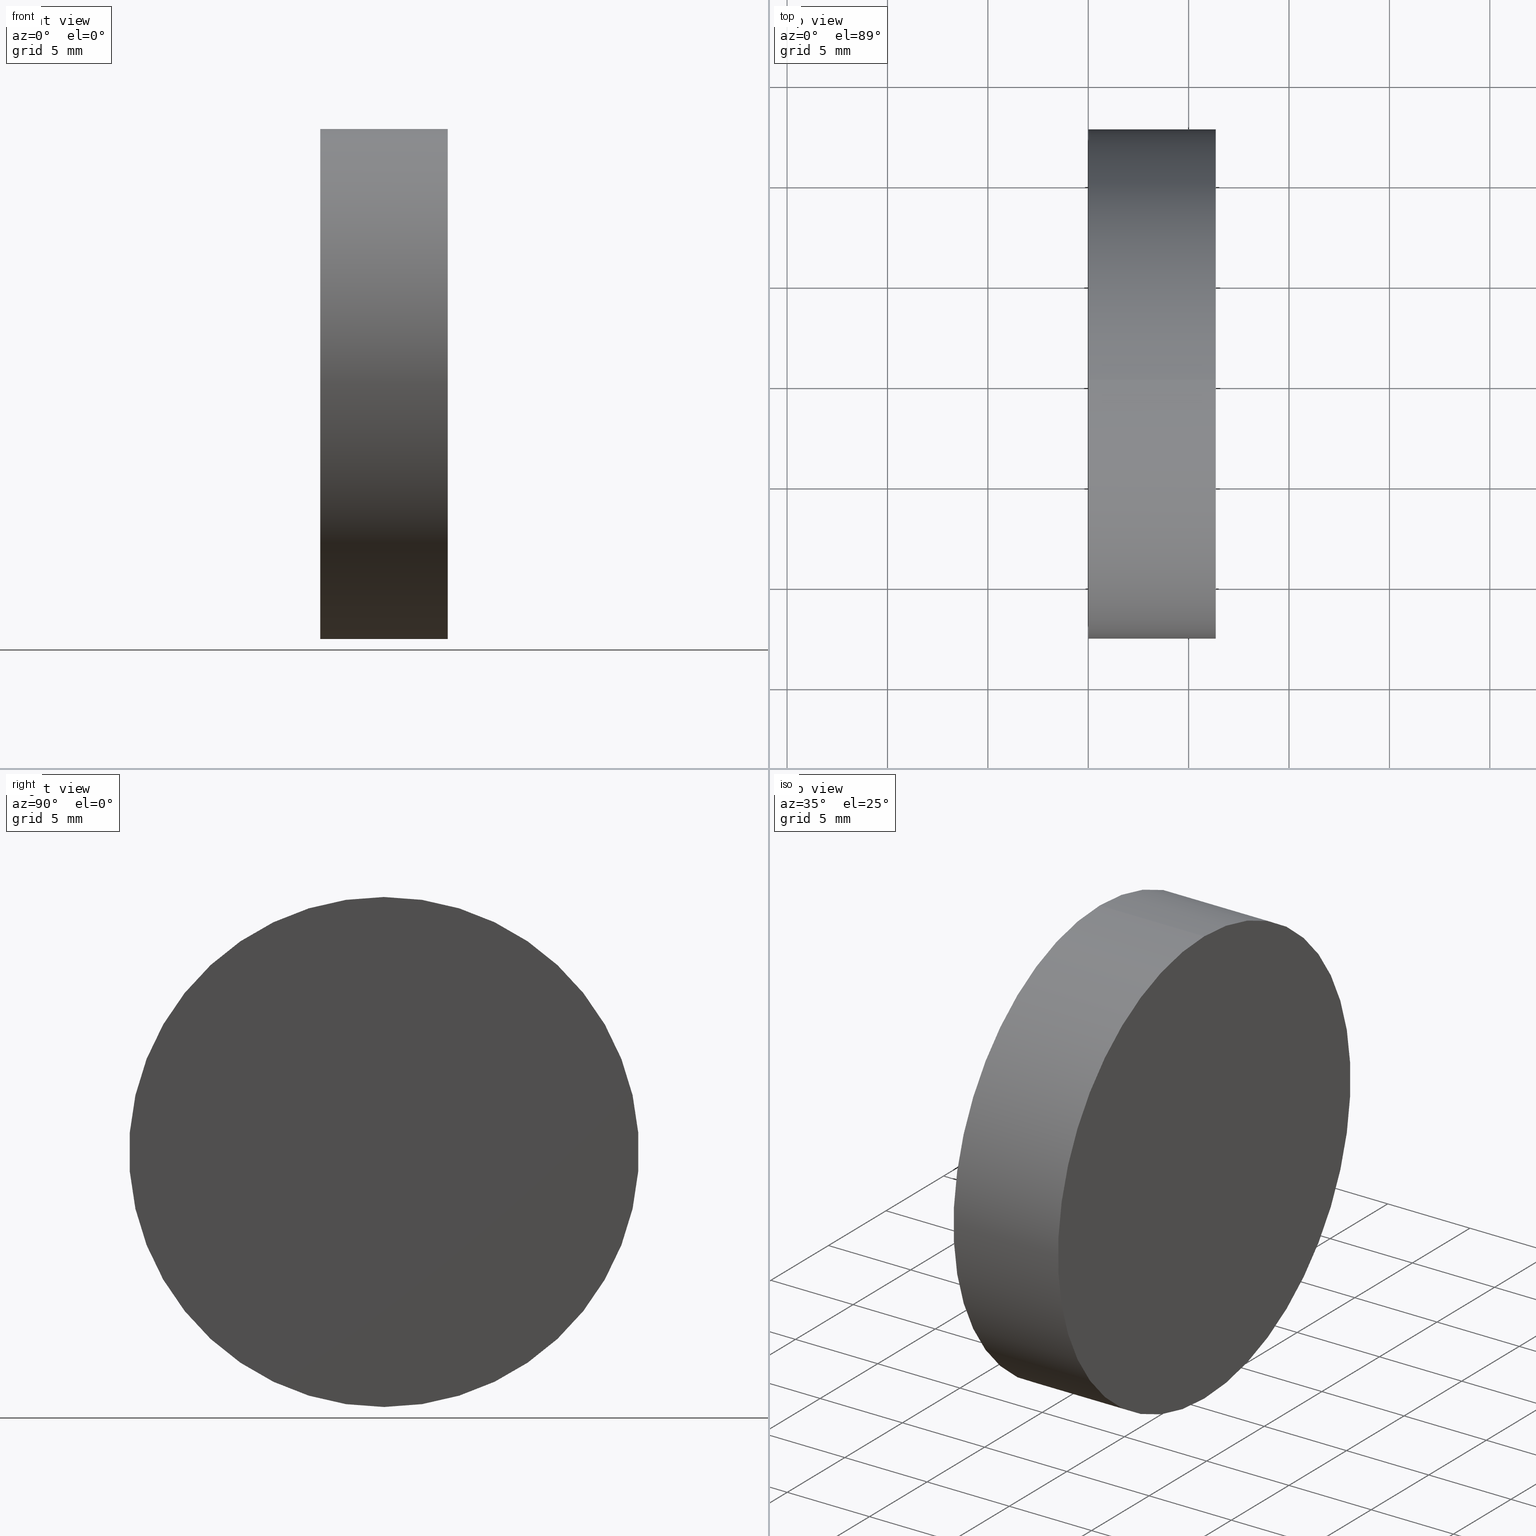
[diagram: canonical four-view strip — front | top / right | iso, engineering-drawing reading convention]
A machine part, canonical four-view strip (front | top / right | iso — engineering-drawing reading convention). The complete STEP part file that produces these views, byte-faithful:
ISO-10303-21;
HEADER;
FILE_DESCRIPTION (( 'STEP AP214' ),
    '1' );
FILE_NAME ('433000.STEP',
    '2019-08-28T01:20:02',
    ( 'user' ),
    ( '΢���й�' ),
    'SwSTEP 2.0',
    'SolidWorks 2016',
    '' );
FILE_SCHEMA (( 'AUTOMOTIVE_DESIGN' ));
ENDSEC;

DATA;
#1 = PRODUCT_CONTEXT ( 'NONE', #131, 'mechanical' ) ;
#2 = APPLICATION_PROTOCOL_DEFINITION ( 'draft international standard', 'automotive_design', 1998, #131 ) ;
#3 = DIRECTION ( 'NONE',  ( 0.0000000000000000000, 0.0000000000000000000, 1.000000000000000000 ) ) ;
#4 = DIRECTION ( 'NONE',  ( -0.0000000000000000000, 0.0000000000000000000, 1.000000000000000000 ) ) ;
#5 = SURFACE_STYLE_USAGE ( .BOTH. , #84 ) ;
#6 = VERTEX_POINT ( 'NONE', #117 ) ;
#7 = DIRECTION ( 'NONE',  ( 0.0000000000000000000, 0.0000000000000000000, 1.000000000000000000 ) ) ;
#8 = LINE ( 'NONE', #132, #63 ) ;
#9 = AXIS2_PLACEMENT_3D ( 'NONE', #113, #83, #4 ) ;
#10 = MECHANICAL_DESIGN_GEOMETRIC_PRESENTATION_REPRESENTATION (  '', ( #79 ), #38 ) ;
#11 = ADVANCED_FACE ( 'NONE', ( #56 ), #51, .T. ) ;
#12 = EDGE_CURVE ( 'NONE', #128, #6, #124, .T. ) ;
#13 = LINE ( 'NONE', #123, #118 ) ;
#14 = AXIS2_PLACEMENT_3D ( 'NONE', #115, #53, #73 ) ;
#15 = EDGE_LOOP ( 'NONE', ( #98, #65 ) ) ;
#16 = DIRECTION ( 'NONE',  ( 0.0000000000000000000, 0.0000000000000000000, 1.000000000000000000 ) ) ;
#17 = AXIS2_PLACEMENT_3D ( 'NONE', #19, #82, #3 ) ;
#18 =( NAMED_UNIT ( * ) SI_UNIT ( $, .STERADIAN. ) SOLID_ANGLE_UNIT ( ) );
#19 = CARTESIAN_POINT ( 'NONE',  ( 1.734723475976807100E-015, 0.0000000000000000000, 0.0000000000000000000 ) ) ;
#20 = DIRECTION ( 'NONE',  ( 0.0000000000000000000, 0.0000000000000000000, 1.000000000000000000 ) ) ;
#21 = PLANE ( 'NONE',  #9 ) ;
#22 = CARTESIAN_POINT ( 'NONE',  ( 1.734723475976807100E-015, 0.0000000000000000000, 0.0000000000000000000 ) ) ;
#23 = PRESENTATION_LAYER_ASSIGNMENT (  '', '', ( #93 ) ) ;
#24 = ORIENTED_EDGE ( 'NONE', *, *, #122, .F. ) ;
#25 = UNCERTAINTY_MEASURE_WITH_UNIT (LENGTH_MEASURE( 1.000000000000000100E-005 ), #28, 'distance_accuracy_value', 'NONE');
#26 = PRODUCT ( '433000', '433000', '', ( #1 ) ) ;
#27 = PRESENTATION_STYLE_ASSIGNMENT (( #5 ) ) ;
#28 =( LENGTH_UNIT ( ) NAMED_UNIT ( * ) SI_UNIT ( .MILLI., .METRE. ) );
#29 = CARTESIAN_POINT ( 'NONE',  ( 1.734723475976807100E-015, 0.0000000000000000000, 12.69999999999999900 ) ) ;
#30 = AXIS2_PLACEMENT_3D ( 'NONE', #46, #72, #134 ) ;
#31 = CARTESIAN_POINT ( 'NONE',  ( 6.349999999999997000, 0.0000000000000000000, 0.0000000000000000000 ) ) ;
#32 = FILL_AREA_STYLE_COLOUR ( '', #129 ) ;
#33 = ORIENTED_EDGE ( 'NONE', *, *, #127, .F. ) ;
#34 = AXIS2_PLACEMENT_3D ( 'NONE', #125, #50, #61 ) ;
#35 = AXIS2_PLACEMENT_3D ( 'NONE', #31, #92, #20 ) ;
#36 = PRODUCT_DEFINITION_FORMATION_WITH_SPECIFIED_SOURCE ( '�κ�', '', #26, .NOT_KNOWN. ) ;
#37 = CLOSED_SHELL ( 'NONE', ( #11, #106, #64, #54 ) ) ;
#38 =( GEOMETRIC_REPRESENTATION_CONTEXT ( 3 ) GLOBAL_UNCERTAINTY_ASSIGNED_CONTEXT ( ( #110 ) ) GLOBAL_UNIT_ASSIGNED_CONTEXT ( ( #111, #40, #99 ) ) REPRESENTATION_CONTEXT ( 'NONE', 'WORKASPACE' ) );
#39 = SHAPE_DEFINITION_REPRESENTATION ( #68, #136 ) ;
#40 =( NAMED_UNIT ( * ) PLANE_ANGLE_UNIT ( ) SI_UNIT ( $, .RADIAN. ) );
#41 = COLOUR_RGB ( '',1.000000000000000000, 1.000000000000000000, 1.000000000000000000 ) ;
#42 = DIRECTION ( 'NONE',  ( -1.000000000000000000, -0.0000000000000000000, -0.0000000000000000000 ) ) ;
#43 = ORIENTED_EDGE ( 'NONE', *, *, #116, .T. ) ;
#44 = FACE_OUTER_BOUND ( 'NONE', #49, .T. ) ;
#45 = PRODUCT_RELATED_PRODUCT_CATEGORY ( 'part', '', ( #26 ) ) ;
#46 = CARTESIAN_POINT ( 'NONE',  ( 6.349999999999998800, 0.0000000000000000000, 0.0000000000000000000 ) ) ;
#47 = UNCERTAINTY_MEASURE_WITH_UNIT (LENGTH_MEASURE( 1.000000000000000100E-005 ), #71, 'distance_accuracy_value', 'NONE');
#48 = SURFACE_STYLE_USAGE ( .BOTH. , #120 ) ;
#49 = EDGE_LOOP ( 'NONE', ( #69, #43 ) ) ;
#50 = DIRECTION ( 'NONE',  ( -1.000000000000000000, -0.0000000000000000000, -0.0000000000000000000 ) ) ;
#51 = CYLINDRICAL_SURFACE ( 'NONE', #14, 12.69999999999999900 ) ;
#52 =( GEOMETRIC_REPRESENTATION_CONTEXT ( 3 ) GLOBAL_UNCERTAINTY_ASSIGNED_CONTEXT ( ( #25 ) ) GLOBAL_UNIT_ASSIGNED_CONTEXT ( ( #28, #90, #18 ) ) REPRESENTATION_CONTEXT ( 'NONE', 'WORKASPACE' ) );
#53 = DIRECTION ( 'NONE',  ( -1.000000000000000000, -0.0000000000000000000, -0.0000000000000000000 ) ) ;
#54 = ADVANCED_FACE ( 'NONE', ( #55 ), #104, .T. ) ;
#55 = FACE_OUTER_BOUND ( 'NONE', #15, .T. ) ;
#56 = FACE_OUTER_BOUND ( 'NONE', #75, .T. ) ;
#57 = FILL_AREA_STYLE ('',( #91 ) ) ;
#58 = CARTESIAN_POINT ( 'NONE',  ( 6.349999999999997000, 1.555301434917138800E-015, -12.70000000000000300 ) ) ;
#59 = DIRECTION ( 'NONE',  ( -1.000000000000000000, -0.0000000000000000000, -0.0000000000000000000 ) ) ;
#60 =( NAMED_UNIT ( * ) SI_UNIT ( $, .STERADIAN. ) SOLID_ANGLE_UNIT ( ) );
#61 = DIRECTION ( 'NONE',  ( 0.0000000000000000000, 0.0000000000000000000, 1.000000000000000000 ) ) ;
#62 = ORIENTED_EDGE ( 'NONE', *, *, #12, .F. ) ;
#63 = VECTOR ( 'NONE', #121, 1000.000000000000000 ) ;
#64 = ADVANCED_FACE ( 'NONE', ( #108 ), #77, .T. ) ;
#65 = ORIENTED_EDGE ( 'NONE', *, *, #100, .F. ) ;
#66 = CIRCLE ( 'NONE', #107, 12.70000000000000100 ) ;
#67 = PRESENTATION_STYLE_ASSIGNMENT (( #48 ) ) ;
#68 = PRODUCT_DEFINITION_SHAPE ( 'NONE', 'NONE',  #76 ) ;
#69 = ORIENTED_EDGE ( 'NONE', *, *, #12, .T. ) ;
#70 = APPLICATION_CONTEXT ( 'automotive_design' ) ;
#71 =( LENGTH_UNIT ( ) NAMED_UNIT ( * ) SI_UNIT ( .MILLI., .METRE. ) );
#72 = DIRECTION ( 'NONE',  ( 1.000000000000000000, 0.0000000000000000000, 0.0000000000000000000 ) ) ;
#73 = DIRECTION ( 'NONE',  ( 0.0000000000000000000, 0.0000000000000000000, 1.000000000000000000 ) ) ;
#74 = PRODUCT_DEFINITION_CONTEXT ( 'detailed design', #70, 'design' ) ;
#75 = EDGE_LOOP ( 'NONE', ( #139, #97, #62, #33 ) ) ;
#76 = PRODUCT_DEFINITION ( 'δ֪', '', #36, #74 ) ;
#77 = CYLINDRICAL_SURFACE ( 'NONE', #34, 12.69999999999999900 ) ;
#78 = ORIENTED_EDGE ( 'NONE', *, *, #100, .T. ) ;
#79 = STYLED_ITEM ( 'NONE', ( #67 ), #136 ) ;
#80 = EDGE_LOOP ( 'NONE', ( #24, #78, #86, #102 ) ) ;
#81 = DIRECTION ( 'NONE',  ( 1.000000000000000000, 0.0000000000000000000, 0.0000000000000000000 ) ) ;
#82 = DIRECTION ( 'NONE',  ( -1.000000000000000000, -0.0000000000000000000, -0.0000000000000000000 ) ) ;
#83 = DIRECTION ( 'NONE',  ( -1.000000000000000000, 0.0000000000000000000, -0.0000000000000000000 ) ) ;
#84 = SURFACE_SIDE_STYLE ('',( #105 ) ) ;
#85 = DIRECTION ( 'NONE',  ( -1.000000000000000000, -0.0000000000000000000, -0.0000000000000000000 ) ) ;
#86 = ORIENTED_EDGE ( 'NONE', *, *, #127, .T. ) ;
#87 = MANIFOLD_SOLID_BREP ( '��ת1', #37 ) ;
#88 = VERTEX_POINT ( 'NONE', #103 ) ;
#89 = CARTESIAN_POINT ( 'NONE',  ( 0.0000000000000000000, 0.0000000000000000000, 0.0000000000000000000 ) ) ;
#90 =( NAMED_UNIT ( * ) PLANE_ANGLE_UNIT ( ) SI_UNIT ( $, .RADIAN. ) );
#91 = FILL_AREA_STYLE_COLOUR ( '', #41 ) ;
#92 = DIRECTION ( 'NONE',  ( -1.000000000000000000, -0.0000000000000000000, -0.0000000000000000000 ) ) ;
#93 = STYLED_ITEM ( 'NONE', ( #27 ), #87 ) ;
#94 = CIRCLE ( 'NONE', #17, 12.69999999999999900 ) ;
#95 = SURFACE_STYLE_FILL_AREA ( #57 ) ;
#96 = MECHANICAL_DESIGN_GEOMETRIC_PRESENTATION_REPRESENTATION (  '', ( #93 ), #138 ) ;
#97 = ORIENTED_EDGE ( 'NONE', *, *, #122, .T. ) ;
#98 = ORIENTED_EDGE ( 'NONE', *, *, #109, .F. ) ;
#99 =( NAMED_UNIT ( * ) SI_UNIT ( $, .STERADIAN. ) SOLID_ANGLE_UNIT ( ) );
#100 = EDGE_CURVE ( 'NONE', #135, #88, #119, .T. ) ;
#101 = DIRECTION ( 'NONE',  ( 0.0000000000000000000, 0.0000000000000000000, 1.000000000000000000 ) ) ;
#102 = ORIENTED_EDGE ( 'NONE', *, *, #116, .F. ) ;
#103 = CARTESIAN_POINT ( 'NONE',  ( 6.349999999999997000, 0.0000000000000000000, 12.70000000000000100 ) ) ;
#104 = PLANE ( 'NONE',  #30 ) ;
#105 = SURFACE_STYLE_FILL_AREA ( #114 ) ;
#106 = ADVANCED_FACE ( 'NONE', ( #44 ), #21, .T. ) ;
#107 = AXIS2_PLACEMENT_3D ( 'NONE', #112, #42, #101 ) ;
#108 = FACE_OUTER_BOUND ( 'NONE', #80, .T. ) ;
#109 = EDGE_CURVE ( 'NONE', #88, #135, #66, .T. ) ;
#110 = UNCERTAINTY_MEASURE_WITH_UNIT (LENGTH_MEASURE( 1.000000000000000100E-005 ), #111, 'distance_accuracy_value', 'NONE');
#111 =( LENGTH_UNIT ( ) NAMED_UNIT ( * ) SI_UNIT ( .MILLI., .METRE. ) );
#112 = CARTESIAN_POINT ( 'NONE',  ( 6.349999999999997000, 0.0000000000000000000, 0.0000000000000000000 ) ) ;
#113 = CARTESIAN_POINT ( 'NONE',  ( 7.070551908652576200E-016, 0.0000000000000000000, 0.0000000000000000000 ) ) ;
#114 = FILL_AREA_STYLE ('',( #32 ) ) ;
#115 = CARTESIAN_POINT ( 'NONE',  ( -5.443049946215309900, 0.0000000000000000000, 0.0000000000000000000 ) ) ;
#116 = EDGE_CURVE ( 'NONE', #6, #128, #94, .T. ) ;
#117 = CARTESIAN_POINT ( 'NONE',  ( 1.734723475976807100E-015, 1.555301434917138400E-015, -12.69999999999999900 ) ) ;
#118 = VECTOR ( 'NONE', #59, 1000.000000000000000 ) ;
#119 = CIRCLE ( 'NONE', #35, 12.70000000000000100 ) ;
#120 = SURFACE_SIDE_STYLE ('',( #95 ) ) ;
#121 = DIRECTION ( 'NONE',  ( -1.000000000000000000, -0.0000000000000000000, -0.0000000000000000000 ) ) ;
#122 = EDGE_CURVE ( 'NONE', #135, #6, #13, .T. ) ;
#123 = CARTESIAN_POINT ( 'NONE',  ( -5.443049946215309900, 1.555301434917138400E-015, -12.69999999999999900 ) ) ;
#124 = CIRCLE ( 'NONE', #137, 12.69999999999999900 ) ;
#125 = CARTESIAN_POINT ( 'NONE',  ( -5.443049946215309900, 0.0000000000000000000, 0.0000000000000000000 ) ) ;
#126 = PRESENTATION_LAYER_ASSIGNMENT (  '', '', ( #79 ) ) ;
#127 = EDGE_CURVE ( 'NONE', #88, #128, #8, .T. ) ;
#128 = VERTEX_POINT ( 'NONE', #29 ) ;
#129 = COLOUR_RGB ( '',1.000000000000000000, 1.000000000000000000, 1.000000000000000000 ) ;
#130 = APPLICATION_PROTOCOL_DEFINITION ( 'draft international standard', 'automotive_design', 1998, #70 ) ;
#131 = APPLICATION_CONTEXT ( 'automotive_design' ) ;
#132 = CARTESIAN_POINT ( 'NONE',  ( -5.443049946215309900, 0.0000000000000000000, 12.69999999999999900 ) ) ;
#133 =( NAMED_UNIT ( * ) PLANE_ANGLE_UNIT ( ) SI_UNIT ( $, .RADIAN. ) );
#134 = DIRECTION ( 'NONE',  ( 0.0000000000000000000, 0.0000000000000000000, -1.000000000000000000 ) ) ;
#135 = VERTEX_POINT ( 'NONE', #58 ) ;
#136 = ADVANCED_BREP_SHAPE_REPRESENTATION ( '433000', ( #87, #140 ), #52 ) ;
#137 = AXIS2_PLACEMENT_3D ( 'NONE', #22, #85, #7 ) ;
#138 =( GEOMETRIC_REPRESENTATION_CONTEXT ( 3 ) GLOBAL_UNCERTAINTY_ASSIGNED_CONTEXT ( ( #47 ) ) GLOBAL_UNIT_ASSIGNED_CONTEXT ( ( #71, #133, #60 ) ) REPRESENTATION_CONTEXT ( 'NONE', 'WORKASPACE' ) );
#139 = ORIENTED_EDGE ( 'NONE', *, *, #109, .T. ) ;
#140 = AXIS2_PLACEMENT_3D ( 'NONE', #89, #16, #81 ) ;
ENDSEC;
END-ISO-10303-21;
